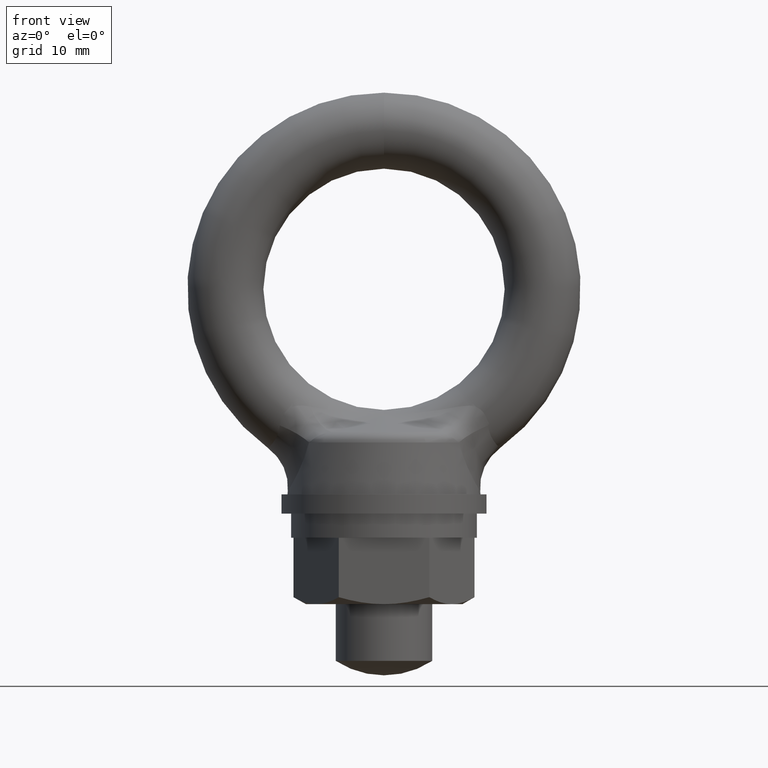
[diagram: clean part render]
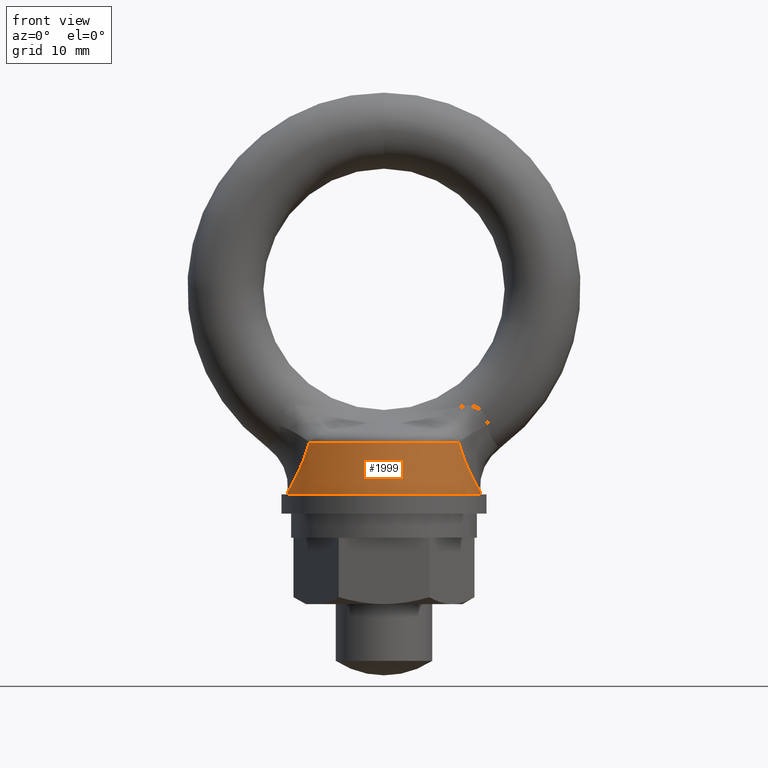
[diagram: same view with one face highlighted and labeled with its STEP entity id]
A machine part, front view. The second image highlights one B-rep face of the part: STEP entity #1999.
In plain terms, the highlighted conical surface has half-angle 5 deg.
Its self-contained STEP definition (entity closure, byte-faithful):
#1572 = CARTESIAN_POINT ( 'NONE',  ( -7.978061295766676300, -2.547674772147074800E-011, -16.74923997788642900 ) ) ;
#1573 = CARTESIAN_POINT ( 'NONE',  ( -7.978061295765623800, -0.2833191255498201900, -16.74923997788471700 ) ) ;
#1574 = CARTESIAN_POINT ( 'NONE',  ( -7.959795342409210900, -0.5718046275041914800, -16.71977356463808200 ) ) ;
#1575 = CARTESIAN_POINT ( 'NONE',  ( -7.890987243053435100, -1.122473905029034400, -16.60671778006374700 ) ) ;
#1576 = CARTESIAN_POINT ( 'NONE',  ( -7.840879418701055300, -1.387375438696458300, -16.52382155039643400 ) ) ;
#1577 = CARTESIAN_POINT ( 'NONE',  ( -6.617505508660244100, -4.011256946778234000, -13.99249650156616900 ) ) ;
#1578 = CARTESIAN_POINT ( 'NONE',  ( -6.527258717941119700, -4.114688659261674700, -13.74266899169101900 ) ) ;
#1579 = CARTESIAN_POINT ( 'NONE',  ( -6.359387483970397900, -4.290113183179031800, -13.23087931092761400 ) ) ;
#1580 = CARTESIAN_POINT ( 'NONE',  ( -6.281497496774276700, -4.362544022843335000, -12.96846117206049700 ) ) ;
#1581 = CARTESIAN_POINT ( 'NONE',  ( -6.210392761138069600, -4.421908272886815500, -12.69996661424272100 ) ) ;
#1582 = CARTESIAN_POINT ( 'NONE',  ( -7.713738907019217300, -1.897586032504910500, -16.30697918787685900 ) ) ;
#1583 = CARTESIAN_POINT ( 'NONE',  ( -7.637741625136117200, -2.137843358775209300, -16.17464781627291600 ) ) ;
#1584 = CARTESIAN_POINT ( 'NONE',  ( -7.472070239655748100, -2.580174103661142300, -15.87401695488658700 ) ) ;
#1585 = CARTESIAN_POINT ( 'NONE',  ( -7.381771383096067400, -2.784521537567979700, -15.70467943273328300 ) ) ;
#1586 = CARTESIAN_POINT ( 'NONE',  ( -7.191972160612237100, -3.162662739913071800, -15.32910516627604900 ) ) ;
#1587 = CARTESIAN_POINT ( 'NONE',  ( -7.093108766145618900, -3.334768518180765400, -15.12382258030863200 ) ) ;
#1588 = CARTESIAN_POINT ( 'NONE',  ( -6.899242522336977300, -3.639404277857394300, -14.69389256611365500 ) ) ;
#1589 = CARTESIAN_POINT ( 'NONE',  ( -6.803290993242570500, -3.773784452342339600, -14.46741059988001900 ) ) ;
#1679 = B_SPLINE_CURVE_WITH_KNOTS ( 'NONE', 3,
 ( #1581, #1580, #1579, #1578, #1577, #1589, #1588, #1587, #1586, #1585, #1584, #1583, #1582, #1576, #1575, #1574, #1573, #1572 ),
 .UNSPECIFIED., .F., .F.,
 ( 4, 2, 2, 2, 2, 2, 2, 2, 4 ),
 ( 0.0000000000000000000, 0.0008491573141449697100, 0.001698314628289939400, 0.002547471942434909100, 0.003396629256579878800, 0.004245786570724849000, 0.005094943884869818300, 0.005944101199014787500, 0.006793258513159757700 ),
 .UNSPECIFIED. ) ;
#1870 = VERTEX_POINT ( 'NONE', #2676 ) ;
#1881 = ORIENTED_EDGE ( 'NONE', *, *, #1954, .F. ) ;
#1882 = ORIENTED_EDGE ( 'NONE', *, *, #1883, .T. ) ;
#1883 = EDGE_CURVE ( 'NONE', #1949, #2119, #2615, .T. ) ;
#1915 = ORIENTED_EDGE ( 'NONE', *, *, #2104, .F. ) ;
#1949 = VERTEX_POINT ( 'NONE', #3212 ) ;
#1950 = VERTEX_POINT ( 'NONE', #3211 ) ;
#1952 = VERTEX_POINT ( 'NONE', #3210 ) ;
#1953 = EDGE_CURVE ( 'NONE', #1950, #1959, #3209, .T. ) ;
#1954 = EDGE_CURVE ( 'NONE', #1949, #1952, #3205, .T. ) ;
#1959 = VERTEX_POINT ( 'NONE', #3291 ) ;
#1999 = ADVANCED_FACE ( 'NONE', ( #3632 ), #3630, .T. ) ;
#2040 = ORIENTED_EDGE ( 'NONE', *, *, #2041, .T. ) ;
#2041 = EDGE_CURVE ( 'NONE', #2119, #1870, #4610, .T. ) ;
#2104 = EDGE_CURVE ( 'NONE', #1952, #1959, #4959, .T. ) ;
#2119 = VERTEX_POINT ( 'NONE', #5060 ) ;
#2120 = EDGE_LOOP ( 'NONE', ( #1881, #1882, #2040, #2135, #2308, #1915 ) ) ;
#2135 = ORIENTED_EDGE ( 'NONE', *, *, #2136, .T. ) ;
#2136 = EDGE_CURVE ( 'NONE', #1870, #1950, #1679, .T. ) ;
#2308 = ORIENTED_EDGE ( 'NONE', *, *, #1953, .T. ) ;
#2615 = B_SPLINE_CURVE_WITH_KNOTS ( 'NONE', 3,
 ( #2750, #2749, #2748, #2747, #2688, #2687, #2686, #2685, #2684, #2683, #2718, #2717, #2716, #2715, #2714, #2713 ),
 .UNSPECIFIED., .F., .F.,
 ( 4, 2, 2, 2, 2, 2, 2, 4 ),
 ( 0.006793258513159759400, 0.007643701321121404800, 0.008494144129083050200, 0.009344586937044695500, 0.01019502974500634100, 0.01104547255296798600, 0.01189591536092963000, 0.01359680097685291700 ),
 .UNSPECIFIED. ) ;
#2676 = CARTESIAN_POINT ( 'NONE',  ( -6.210392761138069600, -4.421908272886815500, -12.69996661424272100 ) ) ;
#2683 = CARTESIAN_POINT ( 'NONE',  ( 7.192233262825612700, -3.162189189056240600, -15.32963966651834300 ) ) ;
#2684 = CARTESIAN_POINT ( 'NONE',  ( 7.382050305574232100, -2.783919052358373200, -15.70521348130625800 ) ) ;
#2685 = CARTESIAN_POINT ( 'NONE',  ( 7.474527990394009600, -2.574390398047316600, -15.87859289991847700 ) ) ;
#2686 = CARTESIAN_POINT ( 'NONE',  ( 7.640562853530668400, -2.129507459972070900, -16.17964746929633800 ) ) ;
#2687 = CARTESIAN_POINT ( 'NONE',  ( 7.715214405743791900, -1.892333759044080700, -16.30952380188658400 ) ) ;
#2688 = CARTESIAN_POINT ( 'NONE',  ( 7.841414596894221500, -1.384548204637224200, -16.52470576121613600 ) ) ;
#2713 = CARTESIAN_POINT ( 'NONE',  ( 6.210392761138069600, -4.421908272886815500, -12.69996661424272100 ) ) ;
#2714 = CARTESIAN_POINT ( 'NONE',  ( 6.352774983116773900, -4.303035545892444500, -13.23760804401850100 ) ) ;
#2715 = CARTESIAN_POINT ( 'NONE',  ( 6.521835315794028500, -4.133273454851131800, -13.74751196352282900 ) ) ;
#2716 = CARTESIAN_POINT ( 'NONE',  ( 6.802326438138771400, -3.775150612293931600, -14.46515609343281400 ) ) ;
#2717 = CARTESIAN_POINT ( 'NONE',  ( 6.900199435006724600, -3.638051344731992200, -14.69613900649317300 ) ) ;
#2718 = CARTESIAN_POINT ( 'NONE',  ( 7.094806094114285400, -3.331948585593760300, -15.12746064357346600 ) ) ;
#2747 = CARTESIAN_POINT ( 'NONE',  ( 7.892762876651934400, -1.111512915870893400, -16.60965174227722900 ) ) ;
#2748 = CARTESIAN_POINT ( 'NONE',  ( 7.960509930743504500, -0.5627155035198899700, -16.72093056700588300 ) ) ;
#2749 = CARTESIAN_POINT ( 'NONE',  ( 7.978061295767733300, -0.2837480271616552600, -16.74923997788813800 ) ) ;
#2750 = CARTESIAN_POINT ( 'NONE',  ( 7.978061295766676300, 2.547687685380514800E-011, -16.74923997788642900 ) ) ;
#3202 = DIRECTION ( 'NONE',  ( 0.08715592029086469100, 1.067316937614295400E-017, -0.9961946825587118000 ) ) ;
#3203 = VECTOR ( 'NONE', #3202, 1000.000000000000000 ) ;
#3204 = CARTESIAN_POINT ( 'NONE',  ( 8.000000000000000000, 9.796850830579018100E-016, -17.00000000000000000 ) ) ;
#3205 = LINE ( 'NONE', #3204, #3203 ) ;
#3206 = DIRECTION ( 'NONE',  ( -0.08715592029086469100, 0.0000000000000000000, -0.9961946825587118000 ) ) ;
#3207 = VECTOR ( 'NONE', #3206, 1000.000000000000000 ) ;
#3208 = CARTESIAN_POINT ( 'NONE',  ( -8.000000000000000000, 0.0000000000000000000, -17.00000000000000000 ) ) ;
#3209 = LINE ( 'NONE', #3208, #3207 ) ;
#3210 = CARTESIAN_POINT ( 'NONE',  ( 8.000000000000000000, 9.796850830579018100E-016, -17.00000000000000000 ) ) ;
#3211 = CARTESIAN_POINT ( 'NONE',  ( -7.978061295766676300, -2.547674772147074800E-011, -16.74923997788642900 ) ) ;
#3212 = CARTESIAN_POINT ( 'NONE',  ( 7.978061295766676300, 2.547687685380514800E-011, -16.74923997788642900 ) ) ;
#3291 = CARTESIAN_POINT ( 'NONE',  ( -8.000000000000000000, 0.0000000000000000000, -17.00000000000000000 ) ) ;
#3627 = DIRECTION ( 'NONE',  ( -1.000000000000000000, 0.0000000000000000000, 0.0000000000000000000 ) ) ;
#3628 = DIRECTION ( 'NONE',  ( 0.0000000000000000000, 0.0000000000000000000, -1.000000000000000000 ) ) ;
#3629 = AXIS2_PLACEMENT_3D ( 'NONE', #3631, #3628, #3627 ) ;
#3630 = CONICAL_SURFACE ( 'NONE', #3629, 8.000000000000000000, 0.08726664082111058900 ) ;
#3631 = CARTESIAN_POINT ( 'NONE',  ( 0.0000000000000000000, 0.0000000000000000000, -17.00000000000000000 ) ) ;
#3632 = FACE_OUTER_BOUND ( 'NONE', #2120, .T. ) ;
#4606 = DIRECTION ( 'NONE',  ( 1.000000000000000000, 0.0000000000000000000, 0.0000000000000000000 ) ) ;
#4607 = DIRECTION ( 'NONE',  ( 0.0000000000000000000, 0.0000000000000000000, -1.000000000000000000 ) ) ;
#4608 = CARTESIAN_POINT ( 'NONE',  ( 0.0000000000000000000, 0.0000000000000000000, -12.69996661424272100 ) ) ;
#4609 = AXIS2_PLACEMENT_3D ( 'NONE', #4608, #4607, #4606 ) ;
#4610 = CIRCLE ( 'NONE', #4609, 7.623795053739380400 ) ;
#4959 = CIRCLE ( 'NONE', #5033, 8.000000000000000000 ) ;
#5030 = DIRECTION ( 'NONE',  ( -1.000000000000000000, 0.0000000000000000000, 0.0000000000000000000 ) ) ;
#5031 = DIRECTION ( 'NONE',  ( 0.0000000000000000000, 0.0000000000000000000, -1.000000000000000000 ) ) ;
#5032 = CARTESIAN_POINT ( 'NONE',  ( 0.0000000000000000000, 0.0000000000000000000, -17.00000000000000000 ) ) ;
#5033 = AXIS2_PLACEMENT_3D ( 'NONE', #5032, #5031, #5030 ) ;
#5060 = CARTESIAN_POINT ( 'NONE',  ( 6.210392761138069600, -4.421908272886815500, -12.69996661424272100 ) ) ;